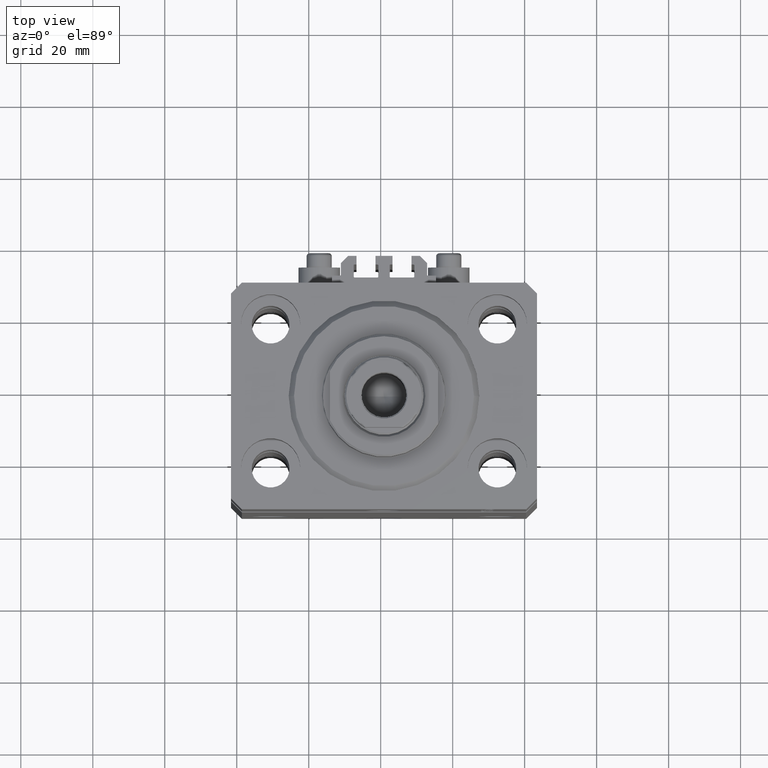
[diagram: clean part render]
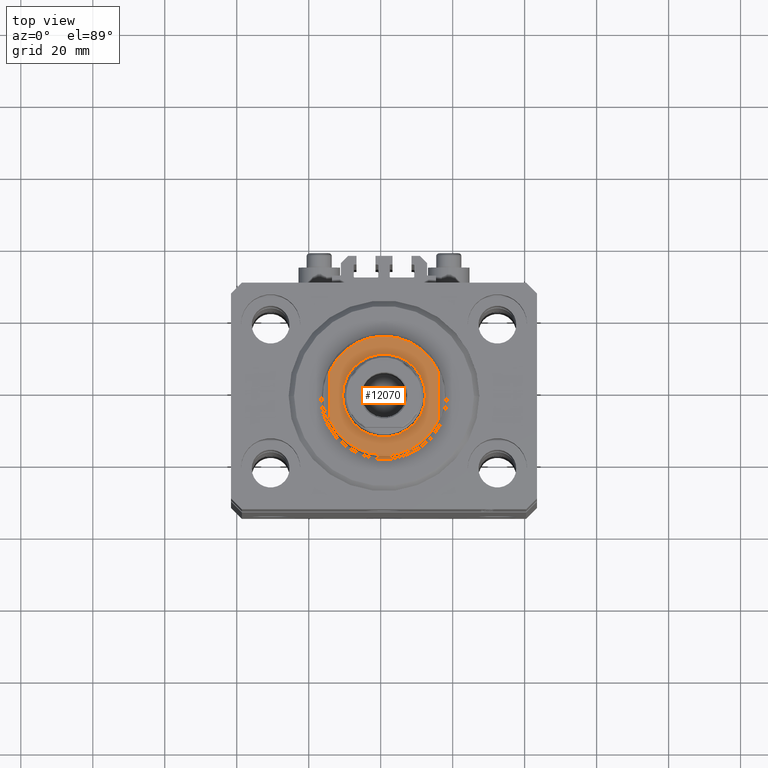
[diagram: same view with one face highlighted and labeled with its STEP entity id]
A machine part, top view. The second image highlights one B-rep face of the part: STEP entity #12070.
In plain terms, the highlighted planar face has unit normal (0, 0, 1).
Its self-contained STEP definition (entity closure, byte-faithful):
#755 = VERTEX_POINT ( 'NONE', #21108 ) ;
#1610 = LINE ( 'NONE', #34961, #35354 ) ;
#3250 = EDGE_CURVE ( 'NONE', #6246, #28954, #13569, .T. ) ;
#3548 = EDGE_CURVE ( 'NONE', #9496, #755, #1610, .T. ) ;
#4765 = DIRECTION ( 'NONE',  ( 0.000000000000000000, -1.000000000000000000, -0.000000000000000000 ) ) ;
#5585 = EDGE_CURVE ( 'NONE', #755, #38974, #11928, .T. ) ;
#6246 = VERTEX_POINT ( 'NONE', #19413 ) ;
#9496 = VERTEX_POINT ( 'NONE', #13173 ) ;
#10355 = CARTESIAN_POINT ( 'NONE',  ( 0.000000000000000000, 0.000000000000000000, -7.000000000000000000 ) ) ;
#11287 = CIRCLE ( 'NONE', #25272, 11.50000000000001776 ) ;
#11928 = CIRCLE ( 'NONE', #20538, 16.50000000000002132 ) ;
#12070 = ADVANCED_FACE ( 'NONE', ( #22935, #26570 ), #37535, .T. ) ;
#13173 = CARTESIAN_POINT ( 'NONE',  ( 14.99999999999999645, 6.873863542433817031, -7.000000000000000000 ) ) ;
#13569 = CIRCLE ( 'NONE', #26020, 11.50000000000001776 ) ;
#14238 = DIRECTION ( 'NONE',  ( -1.000000000000000000, 0.000000000000000000, 0.000000000000000000 ) ) ;
#14828 = DIRECTION ( 'NONE',  ( -1.000000000000000000, 0.000000000000000000, 0.000000000000000000 ) ) ;
#15411 = ORIENTED_EDGE ( 'NONE', *, *, #3250, .T. ) ;
#16764 = VECTOR ( 'NONE', #42853, 1000.000000000000000 ) ;
#17040 = LINE ( 'NONE', #43089, #16764 ) ;
#17082 = CIRCLE ( 'NONE', #28709, 16.50000000000002132 ) ;
#17308 = DIRECTION ( 'NONE',  ( -1.000000000000000000, 0.000000000000000000, 0.000000000000000000 ) ) ;
#19211 = EDGE_CURVE ( 'NONE', #20509, #9496, #17082, .T. ) ;
#19413 = CARTESIAN_POINT ( 'NONE',  ( -11.50000000000001776, 0.000000000000000000, -7.000000000000000000 ) ) ;
#20435 = ORIENTED_EDGE ( 'NONE', *, *, #19211, .T. ) ;
#20509 = VERTEX_POINT ( 'NONE', #31724 ) ;
#20538 = AXIS2_PLACEMENT_3D ( 'NONE', #10355, #32529, #14238 ) ;
#21108 = CARTESIAN_POINT ( 'NONE',  ( 14.99999999999999645, -6.873863542433817031, -7.000000000000000000 ) ) ;
#21212 = CARTESIAN_POINT ( 'NONE',  ( 0.000000000000000000, 0.000000000000000000, -7.000000000000000000 ) ) ;
#22401 = DIRECTION ( 'NONE',  ( -0.000000000000000000, -0.000000000000000000, 1.000000000000000000 ) ) ;
#22935 = FACE_BOUND ( 'NONE', #23497, .T. ) ;
#23497 = EDGE_LOOP ( 'NONE', ( #15411, #33523 ) ) ;
#24666 = ORIENTED_EDGE ( 'NONE', *, *, #5585, .T. ) ;
#24843 = EDGE_LOOP ( 'NONE', ( #20435, #47022, #24666, #43521 ) ) ;
#25272 = AXIS2_PLACEMENT_3D ( 'NONE', #25319, #37006, #14828 ) ;
#25319 = CARTESIAN_POINT ( 'NONE',  ( 0.000000000000000000, 0.000000000000000000, -7.000000000000000000 ) ) ;
#26020 = AXIS2_PLACEMENT_3D ( 'NONE', #26040, #22401, #27227 ) ;
#26040 = CARTESIAN_POINT ( 'NONE',  ( 0.000000000000000000, 0.000000000000000000, -7.000000000000000000 ) ) ;
#26570 = FACE_OUTER_BOUND ( 'NONE', #24843, .T. ) ;
#27227 = DIRECTION ( 'NONE',  ( -1.000000000000000000, 0.000000000000000000, 0.000000000000000000 ) ) ;
#28584 = AXIS2_PLACEMENT_3D ( 'NONE', #29731, #45571, #41903 ) ;
#28709 = AXIS2_PLACEMENT_3D ( 'NONE', #21212, #35832, #17308 ) ;
#28954 = VERTEX_POINT ( 'NONE', #34569 ) ;
#29731 = CARTESIAN_POINT ( 'NONE',  ( 0.000000000000000000, 0.000000000000000000, -7.000000000000000000 ) ) ;
#31724 = CARTESIAN_POINT ( 'NONE',  ( -14.99999999999999645, 6.873863542433817031, -7.000000000000000000 ) ) ;
#32529 = DIRECTION ( 'NONE',  ( 0.000000000000000000, 0.000000000000000000, -1.000000000000000000 ) ) ;
#33523 = ORIENTED_EDGE ( 'NONE', *, *, #45778, .T. ) ;
#34569 = CARTESIAN_POINT ( 'NONE',  ( 11.50000000000001776, 1.408343819019458543E-15, -7.000000000000000000 ) ) ;
#34961 = CARTESIAN_POINT ( 'NONE',  ( 15.00000000000000000, -42.42640687119285303, -7.000000000000000000 ) ) ;
#35354 = VECTOR ( 'NONE', #4765, 1000.000000000000000 ) ;
#35832 = DIRECTION ( 'NONE',  ( 0.000000000000000000, 0.000000000000000000, -1.000000000000000000 ) ) ;
#37006 = DIRECTION ( 'NONE',  ( -0.000000000000000000, -0.000000000000000000, 1.000000000000000000 ) ) ;
#37535 = PLANE ( 'NONE',  #28584 ) ;
#38974 = VERTEX_POINT ( 'NONE', #44337 ) ;
#41903 = DIRECTION ( 'NONE',  ( -1.000000000000000000, 0.000000000000000000, -0.000000000000000000 ) ) ;
#42853 = DIRECTION ( 'NONE',  ( -0.000000000000000000, -1.000000000000000000, -0.000000000000000000 ) ) ;
#43089 = CARTESIAN_POINT ( 'NONE',  ( -15.00000000000000000, -42.42640687119285303, -7.000000000000000000 ) ) ;
#43292 = EDGE_CURVE ( 'NONE', #20509, #38974, #17040, .T. ) ;
#43521 = ORIENTED_EDGE ( 'NONE', *, *, #43292, .F. ) ;
#44337 = CARTESIAN_POINT ( 'NONE',  ( -14.99999999999999645, -6.873863542433817031, -7.000000000000000000 ) ) ;
#45571 = DIRECTION ( 'NONE',  ( 0.000000000000000000, 0.000000000000000000, -1.000000000000000000 ) ) ;
#45778 = EDGE_CURVE ( 'NONE', #28954, #6246, #11287, .T. ) ;
#47022 = ORIENTED_EDGE ( 'NONE', *, *, #3548, .T. ) ;